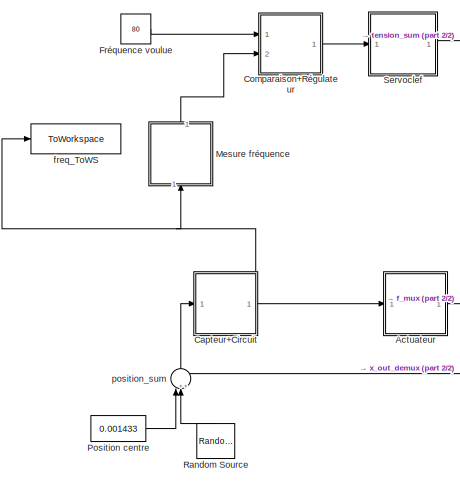
[diagram: root canvas - part 1/2, top left region]
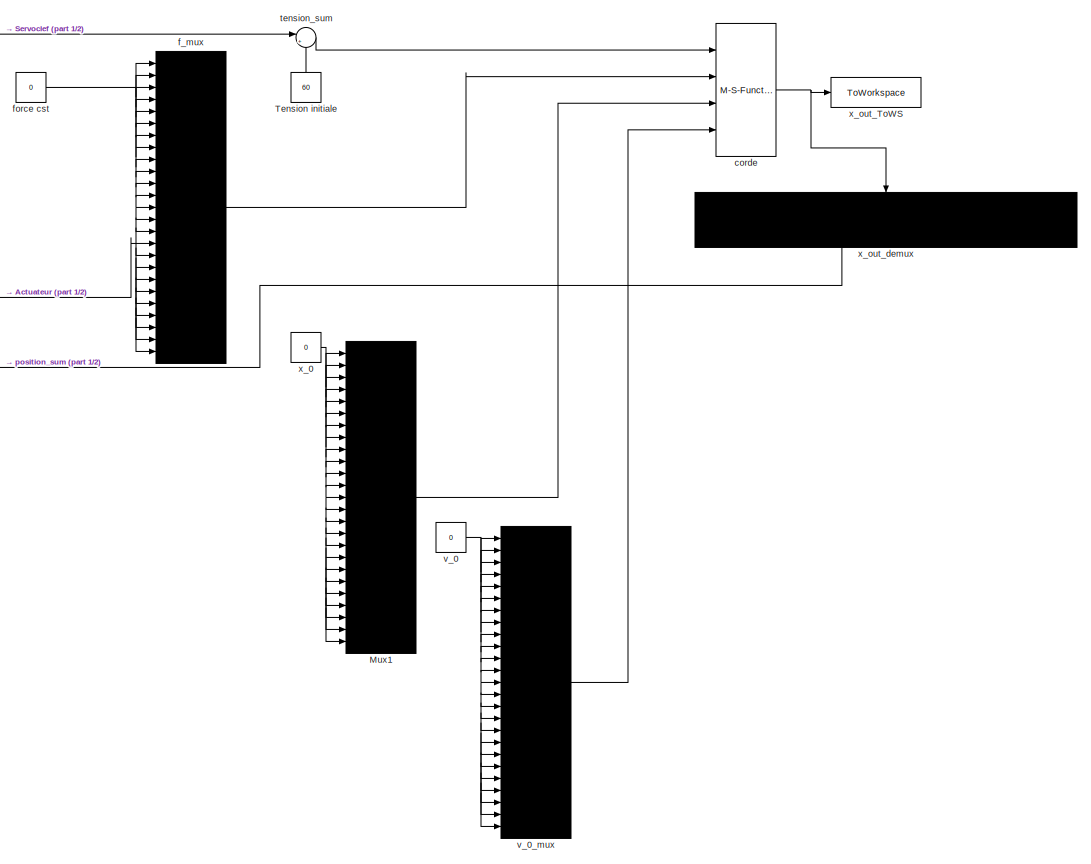
[diagram: root canvas - part 2/2, center side, full height]
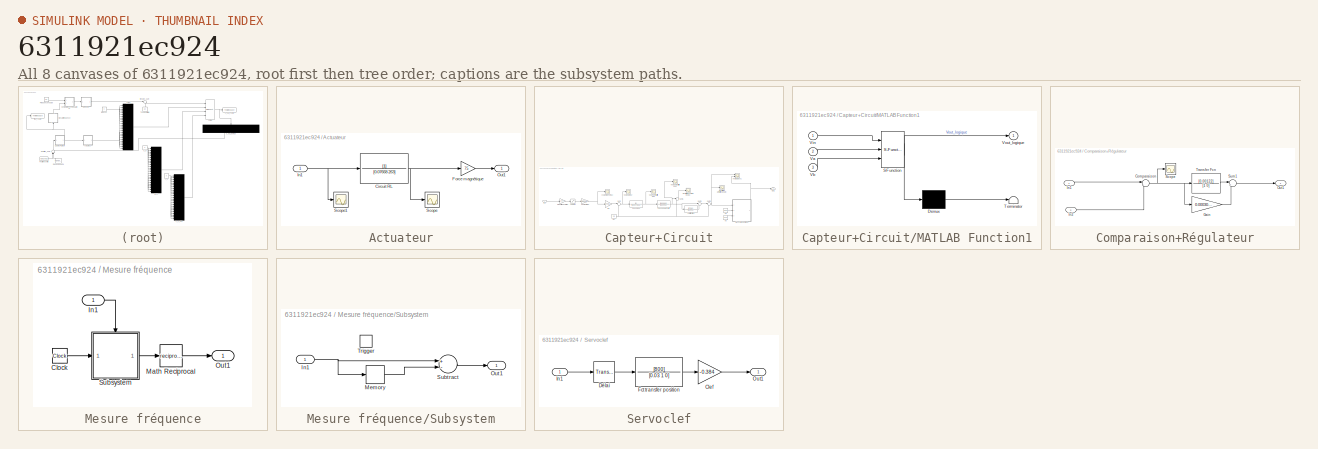
[diagram: thumbnail index - all 8 canvases of the model, root first then tree order]
MODEL slx_6311921ec924
KIND model
CONFIG AbsTol = auto
CONFIG EnableMultiTasking = off
CONFIG FixedStep = 0.001
CONFIG MaxStep = 0.001
CONFIG MinStep = 0.001
CONFIG RelTol = 1e-3
CONFIG SampleTimeConstraint = Unconstrained
CONFIG Solver = FixedStepAuto
CONFIG SolverName = FixedStepAuto
CONFIG StartTime = 0.0
CONFIG StopTime = 10
BLOCK [SubSystem] Actuateur
  Ports = [1, 1]
  RequestExecContextInheritance = off
BLOCK [TransferFcn] Actuateur/Circuit RL
  Denominator = [0.07668 263]
BLOCK [Gain] Actuateur/Force magnétique
  Gain = 75
  OutDataTypeStr = Inherit: Inherit via internal rule
  ParamDataTypeStr = Inherit: Inherit via internal rule
  SaturateOnIntegerOverflow = off
BLOCK [Inport] Actuateur/In1
  IconDisplay = Port number
BLOCK [Outport] Actuateur/Out1
  IconDisplay = Port number
BLOCK [Scope] Actuateur/Scope
  Floating = off
  NumInputPorts = 1
  Ports = [1]
  ScopeSpecificationString = Simulink.scopes.TimeScopeBlockCfg('CurrentConfiguration', extmgr.ConfigurationSet(extmgr.Configuration('Core','General UI',true),extmgr.Configuration('Core','Source UI',true),extmgr.Configuration('Sources','WiredSimulink',true),extmgr.Configuration('Visuals','Time Domain',true,'SerializedDisplays',{struct('MinYLimReal','-0.00492','MaxYLimReal','0.02151','YLabelReal','','MinYLimMag','0.00000','MaxY...<+1405ch>
BLOCK [Scope] Actuateur/Scope1
  Floating = off
  NumInputPorts = 1
  Ports = [1]
  ScopeSpecificationString = Simulink.scopes.TimeScopeBlockCfg('CurrentConfiguration', extmgr.ConfigurationSet(extmgr.Configuration('Core','General UI',true),extmgr.Configuration('Core','Source UI',true),extmgr.Configuration('Sources','WiredSimulink',true,'DataLoggingVariableName','ScopeData1'),extmgr.Configuration('Visuals','Time Domain',true,'SerializedDisplays',{struct('MinYLimReal','-6.25','MaxYLimReal','6.25','YLabelReal...<+1419ch>
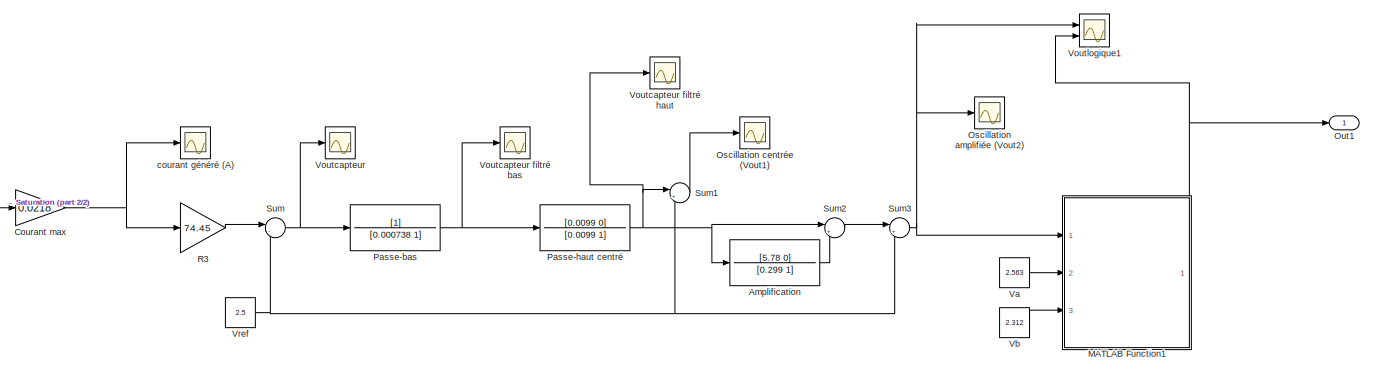
[diagram: Capteur+Circuit - part 1/2, most of the canvas]
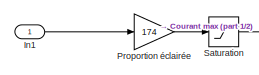
[diagram: Capteur+Circuit - part 2/2, middle left region]
BLOCK [SubSystem] Capteur+Circuit
  Ports = [1, 1]
  RequestExecContextInheritance = off
BLOCK [TransferFcn] Capteur+Circuit/Amplification 
  Denominator = [0.299 1]
  Numerator = [5.78 0]
BLOCK [Gain] Capteur+Circuit/Courant max
  Gain = 0.0218
  OutDataTypeStr = Inherit: Inherit via internal rule
  ParamDataTypeStr = Inherit: Inherit via internal rule
  SaturateOnIntegerOverflow = off
BLOCK [Inport] Capteur+Circuit/In1
  IconDisplay = Port number
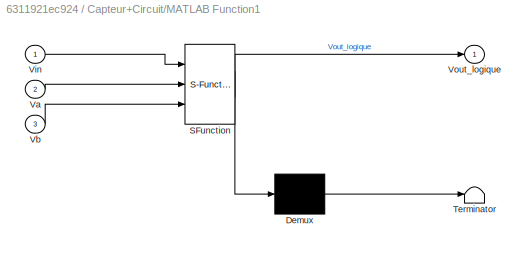
BLOCK [SubSystem] Capteur+Circuit/MATLAB Function1
  ErrorFcn = Stateflow.Translate.translate
  PermitHierarchicalResolution = ExplicitOnly
  Ports = [3, 1]
  RequestExecContextInheritance = off
  SFBlockType = MATLAB Function
  TreatAsAtomicUnit = on
BLOCK [Demux] Capteur+Circuit/MATLAB Function1/ Demux 
  Outputs = 1
  Ports = [1, 1]
BLOCK [S-Function] Capteur+Circuit/MATLAB Function1/ SFunction 
  EnableBusSupport = on
  FunctionName = sf_sfun
  PortCounts = [3 2]
  Ports = [3, 2]
  SFcnIsStateOwnerBlock = off
  SFunctionDeploymentMode = off
  Tag = Stateflow S-Function 1
BLOCK [Terminator] Capteur+Circuit/MATLAB Function1/ Terminator 
BLOCK [Inport] Capteur+Circuit/MATLAB Function1/Va
  IconDisplay = Port number
  Port = 2
BLOCK [Inport] Capteur+Circuit/MATLAB Function1/Vb
  IconDisplay = Port number
  Port = 3
BLOCK [Inport] Capteur+Circuit/MATLAB Function1/Vin
  IconDisplay = Port number
BLOCK [Outport] Capteur+Circuit/MATLAB Function1/Vout_logique
  IconDisplay = Port number
BLOCK [Scope] Capteur+Circuit/Oscillation amplifiée (Vout2) 
  Floating = off
  NumInputPorts = 1
  Ports = [1]
  ScopeSpecificationString = Simulink.scopes.TimeScopeBlockCfg('CurrentConfiguration', extmgr.ConfigurationSet(extmgr.Configuration('Core','General UI',true),extmgr.Configuration('Core','Source UI',true),extmgr.Configuration('Sources','WiredSimulink',true,'DataLoggingVariableName','ScopeData4'),extmgr.Configuration('Visuals','Time Domain',true,'SerializedDisplays',{struct('MinYLimReal','0.13794','MaxYLimReal','4.91227','YLabe...<+1487ch>
BLOCK [Scope] Capteur+Circuit/Oscillation centrée (Vout1)
  Floating = off
  NumInputPorts = 1
  Ports = [1]
  ScopeSpecificationString = Simulink.scopes.TimeScopeBlockCfg('CurrentConfiguration', extmgr.ConfigurationSet(extmgr.Configuration('Core','General UI',true),extmgr.Configuration('Core','Source UI',true),extmgr.Configuration('Sources','WiredSimulink',true,'DataLoggingVariableName','ScopeData3'),extmgr.Configuration('Visuals','Time Domain',true,'SerializedDisplays',{struct('MinYLimReal','1.75493','MaxYLimReal','4.03396','YLabe...<+1432ch>
BLOCK [Outport] Capteur+Circuit/Out1
  IconDisplay = Port number
BLOCK [TransferFcn] Capteur+Circuit/Passe-bas
  Denominator = [0.000738 1]
BLOCK [TransferFcn] Capteur+Circuit/Passe-haut centré 
  Denominator = [0.0099 1]
  Numerator = [0.0099 0]
BLOCK [Gain] Capteur+Circuit/Proportion éclairée
  Gain = 174
  OutDataTypeStr = Inherit: Inherit via internal rule
  ParamDataTypeStr = Inherit: Inherit via internal rule
  SaturateOnIntegerOverflow = off
BLOCK [Gain] Capteur+Circuit/R3
  Gain = 74.45
  OutDataTypeStr = Inherit: Inherit via internal rule
  ParamDataTypeStr = Inherit: Inherit via internal rule
  SaturateOnIntegerOverflow = off
BLOCK [Saturate] Capteur+Circuit/Saturation
  InputPortMap = u0
  LowerLimit = 0
  Ports = [1, 1]
  UpperLimit = 0.497
BLOCK [Sum] Capteur+Circuit/Sum
  IconShape = round
  InputSameDT = off
  Inputs = |-+
  OutDataTypeStr = Inherit: Inherit via internal rule
  Ports = [2, 1]
  SaturateOnIntegerOverflow = off
BLOCK [Sum] Capteur+Circuit/Sum1
  IconShape = round
  InputSameDT = off
  Inputs = |++
  OutDataTypeStr = Inherit: Inherit via internal rule
  Ports = [2, 1]
  SaturateOnIntegerOverflow = off
BLOCK [Sum] Capteur+Circuit/Sum2
  IconShape = round
  InputSameDT = off
  Inputs = |++
  OutDataTypeStr = Inherit: Inherit via internal rule
  Ports = [2, 1]
  SaturateOnIntegerOverflow = off
BLOCK [Sum] Capteur+Circuit/Sum3
  IconShape = round
  InputSameDT = off
  Inputs = |++
  OutDataTypeStr = Inherit: Inherit via internal rule
  Ports = [2, 1]
  SaturateOnIntegerOverflow = off
BLOCK [Constant] Capteur+Circuit/Va 
  Value = 2.563
BLOCK [Constant] Capteur+Circuit/Vb
  Value = 2.312
BLOCK [Scope] Capteur+Circuit/Voutcapteur 
  Floating = off
  NumInputPorts = 1
  Ports = [1]
  ScopeSpecificationString = Simulink.scopes.TimeScopeBlockCfg('CurrentConfiguration', extmgr.ConfigurationSet(extmgr.Configuration('Core','General UI',true),extmgr.Configuration('Core','Source UI',true),extmgr.Configuration('Sources','WiredSimulink',true,'DataLoggingVariableName','ScopeData2'),extmgr.Configuration('Visuals','Time Domain',true,'SerializedDisplays',{struct('MinYLimReal','2.3777','MaxYLimReal','2.38025','YLabel...<+1482ch>
BLOCK [Scope] Capteur+Circuit/Voutcapteur filtré bas
  Floating = off
  NumInputPorts = 1
  Ports = [1]
  ScopeSpecificationString = Simulink.scopes.TimeScopeBlockCfg('CurrentConfiguration', extmgr.ConfigurationSet(extmgr.Configuration('Core','General UI',true),extmgr.Configuration('Core','Source UI',true),extmgr.Configuration('Sources','WiredSimulink',true,'DataLoggingVariableName','ScopeData1'),extmgr.Configuration('Visuals','Time Domain',true,'SerializedDisplays',{struct('MinYLimReal','-0.30667','MaxYLimReal','2.76003','YLab...<+1469ch>
BLOCK [Scope] Capteur+Circuit/Voutcapteur filtré haut
  Floating = off
  NumInputPorts = 1
  Ports = [1]
  ScopeSpecificationString = Simulink.scopes.TimeScopeBlockCfg('CurrentConfiguration', extmgr.ConfigurationSet(extmgr.Configuration('Core','General UI',true),extmgr.Configuration('Core','Source UI',true),extmgr.Configuration('Sources','WiredSimulink',true,'DataLoggingVariableName','ScopeData2'),extmgr.Configuration('Visuals','Time Domain',true,'SerializedDisplays',{struct('MinYLimReal','-0.0776','MaxYLimReal','0.09565','YLabe...<+1445ch>
BLOCK [Scope] Capteur+Circuit/Voutlogique1
  Floating = off
  NumInputPorts = 2
  Ports = [2]
  ScopeSpecificationString = Simulink.scopes.TimeScopeBlockCfg('CurrentConfiguration', extmgr.ConfigurationSet(extmgr.Configuration('Core','General UI',true),extmgr.Configuration('Core','Source UI',true),extmgr.Configuration('Sources','WiredSimulink',true,'DataLoggingVariableName','ScopeData6'),extmgr.Configuration('Visuals','Time Domain',true,'SerializedDisplays',{struct('MinYLimReal','-87.77017','MaxYLimReal','15.3078','YLa...<+1823ch>
BLOCK [Constant] Capteur+Circuit/Vref 
  Value = 2.5
BLOCK [Scope] Capteur+Circuit/courant généré (A) 
  Floating = off
  NumInputPorts = 1
  Ports = [1]
  ScopeSpecificationString = Simulink.scopes.TimeScopeBlockCfg('CurrentConfiguration', extmgr.ConfigurationSet(extmgr.Configuration('Core','General UI',true),extmgr.Configuration('Core','Source UI',true),extmgr.Configuration('Sources','WiredSimulink',true),extmgr.Configuration('Visuals','Time Domain',true,'SerializedDisplays',{struct('MinYLimReal','-0.00264','MaxYLimReal','0.0238','YLabelReal','','MinYLimMag','0.00000','MaxYL...<+1426ch>
BLOCK [SubSystem] Comparaison+Régulateur
  Ports = [2, 1]
  RequestExecContextInheritance = off
BLOCK [Sum] Comparaison+Régulateur/Comparaison
  IconShape = round
  InputSameDT = off
  Inputs = |-+
  OutDataTypeStr = Inherit: Inherit via internal rule
  Ports = [2, 1]
  SaturateOnIntegerOverflow = off
BLOCK [Gain] Comparaison+Régulateur/Gain
  Gain = 0.0003051
  OutDataTypeStr = Inherit: Inherit via internal rule
  ParamDataTypeStr = Inherit: Inherit via internal rule
  SaturateOnIntegerOverflow = off
BLOCK [Inport] Comparaison+Régulateur/In1
  IconDisplay = Port number
BLOCK [Inport] Comparaison+Régulateur/In2
  IconDisplay = Port number
  Port = 2
BLOCK [Outport] Comparaison+Régulateur/Out1
  IconDisplay = Port number
BLOCK [Scope] Comparaison+Régulateur/Scope
  Floating = off
  NumInputPorts = 1
  Ports = [1]
  ScopeSpecificationString = Simulink.scopes.TimeScopeBlockCfg('CurrentConfiguration', extmgr.ConfigurationSet(extmgr.Configuration('Core','General UI',true),extmgr.Configuration('Core','Source UI',true),extmgr.Configuration('Sources','WiredSimulink',true,'DataLoggingVariableName','ScopeData6'),extmgr.Configuration('Visuals','Time Domain',true,'SerializedDisplays',{struct('MinYLimReal','-223.29815','MaxYLimReal','-190.31662',...<+1439ch>
BLOCK [Sum] Comparaison+Régulateur/Sum1
  IconShape = round
  InputSameDT = off
  Inputs = |++
  OutDataTypeStr = Inherit: Inherit via internal rule
  Ports = [2, 1]
  SaturateOnIntegerOverflow = off
BLOCK [TransferFcn] Comparaison+Régulateur/Transfer Fcn
  Denominator = [1 0]
  Numerator = [0.00122]
BLOCK [Constant] Fréquence voulue
  Value = 80
BLOCK [SubSystem] Mesure fréquence
  Ports = [1, 1]
  RequestExecContextInheritance = off
BLOCK [Clock] Mesure fréquence/Clock
BLOCK [Inport] Mesure fréquence/In1
  IconDisplay = Port number
BLOCK [Math] Mesure fréquence/Math Reciprocal
  Operator = reciprocal
  Ports = [1, 1]
BLOCK [Outport] Mesure fréquence/Out1
  IconDisplay = Port number
BLOCK [SubSystem] Mesure fréquence/Subsystem
  Ports = [1, 1, 0, 1]
  RequestExecContextInheritance = off
BLOCK [Inport] Mesure fréquence/Subsystem/In1
  IconDisplay = Port number
BLOCK [Memory] Mesure fréquence/Subsystem/Memory
  InheritSampleTime = on
BLOCK [Outport] Mesure fréquence/Subsystem/Out1
  IconDisplay = Port number
BLOCK [Sum] Mesure fréquence/Subsystem/Subtract
  InputSameDT = off
  Inputs = +-
  OutDataTypeStr = Inherit: Inherit via internal rule
  Ports = [2, 1]
  SaturateOnIntegerOverflow = off
BLOCK [TriggerPort] Mesure fréquence/Subsystem/Trigger
  PortDimensions = 1
  Ports = []
  StatesWhenEnabling = held
  VariantControl = Variant
BLOCK [Mux] Mux1
  DisplayOption = bar
  Inputs = 25
  Ports = [25, 1]
BLOCK [Constant] Position centre
  Value = 0.001433
BLOCK [Reference] Random Source  REF=dspsrcs4/Random
Source
  Commented = on
  Ports = [0, 1]
  SourceBlock = dspsrcs4/Random\nSource
  SourceProductBaseCode = DS
  SourceProductName = DSP System Toolbox
  SourceType = Random Source
  UserDataPersistent = on
BLOCK [SubSystem] Servoclef
  Ports = [1, 1]
  RequestExecContextInheritance = off
BLOCK [Gain] Servoclef/Clef
  Gain = -0.384
  OutDataTypeStr = Inherit: Inherit via internal rule
  ParamDataTypeStr = Inherit: Inherit via internal rule
  SaturateOnIntegerOverflow = off
BLOCK [TransportDelay] Servoclef/Délai
  DelayTime = 0.01
  Ports = [1, 1]
BLOCK [TransferFcn] Servoclef/Fct transfer position
  Denominator = [0.03 1 0]
  Numerator = [800]
BLOCK [Inport] Servoclef/In1
  IconDisplay = Port number
BLOCK [Outport] Servoclef/Out1
  IconDisplay = Port number
BLOCK [Constant] Tension initiale
  Value = 60
BLOCK [M-S-Function] corde
  FunctionName = CordeBySegment_SetupSimulink
  Parameters = 9.600000e-04, 3.000000e-01, 0, 25, 1.000000e-03
  Ports = [4, 1]
BLOCK [Mux] f_mux
  DisplayOption = bar
  Inputs = 25
  Ports = [25, 1]
BLOCK [Constant] force cst
  Value = 0
BLOCK [ToWorkspace] freq_ToWS
  Commented = on
  FixptAsFi = on
  MaxDataPoints = inf
  Ports = [1]
  SampleTime = -1
  SaveFormat = Timeseries
  VariableName = frequence_temps
BLOCK [Sum] position_sum
  IconShape = round
  InputSameDT = off
  Inputs = |+++
  OutDataTypeStr = Inherit: Inherit via internal rule
  Ports = [3, 1]
  SaturateOnIntegerOverflow = off
BLOCK [Sum] tension_sum
  IconShape = round
  InputSameDT = off
  Inputs = |++
  OutDataTypeStr = Inherit: Inherit via internal rule
  Ports = [2, 1]
  SaturateOnIntegerOverflow = off
BLOCK [Constant] v_0
  Value = 0
BLOCK [Mux] v_0_mux
  DisplayOption = bar
  Inputs = 25
  Ports = [25, 1]
BLOCK [Constant] x_0
  Value = 0
BLOCK [ToWorkspace] x_out_ToWS
  FixptAsFi = on
  MaxDataPoints = inf
  Ports = [1]
  SampleTime = -1
  SaveFormat = Timeseries
  VariableName = corde_mesure
BLOCK [Demux] x_out_demux
  DisplayOption = bar
  Outputs = 25
  Ports = [1, 25]
NET Actuateur/Circuit RL:1 -> Actuateur/Force magnétique:1, Actuateur/Scope:1
LINE Actuateur/Force magnétique:1 -> Actuateur/Out1:1
NET Actuateur/In1:1 -> Actuateur/Circuit RL:1, Actuateur/Scope1:1
LINE Actuateur:1 -> f_mux:16
LINE Capteur+Circuit/Amplification :1 -> Capteur+Circuit/Sum2:2
NET Capteur+Circuit/Courant max:1 -> Capteur+Circuit/R3:1, Capteur+Circuit/courant généré (A) :1
LINE Capteur+Circuit/In1:1 -> Capteur+Circuit/Proportion éclairée:1
NET Capteur+Circuit/MATLAB Function1:1 -> Capteur+Circuit/Out1:1, Capteur+Circuit/Voutlogique1:2
NET Capteur+Circuit/Passe-bas:1 -> Capteur+Circuit/Passe-haut centré :1, Capteur+Circuit/Voutcapteur filtré bas:1
NET Capteur+Circuit/Passe-haut centré :1 -> Capteur+Circuit/Amplification :1, Capteur+Circuit/Sum1:1, Capteur+Circuit/Sum2:1, Capteur+Circuit/Voutcapteur filtré haut:1
LINE Capteur+Circuit/Proportion éclairée:1 -> Capteur+Circuit/Saturation:1
LINE Capteur+Circuit/R3:1 -> Capteur+Circuit/Sum:1
LINE Capteur+Circuit/Saturation:1 -> Capteur+Circuit/Courant max:1
LINE Capteur+Circuit/Sum1:1 -> Capteur+Circuit/Oscillation centrée (Vout1):1
LINE Capteur+Circuit/Sum2:1 -> Capteur+Circuit/Sum3:1
NET Capteur+Circuit/Sum3:1 -> Capteur+Circuit/MATLAB Function1:1, Capteur+Circuit/Oscillation amplifiée (Vout2) :1, Capteur+Circuit/Voutlogique1:1
NET Capteur+Circuit/Sum:1 -> Capteur+Circuit/Passe-bas:1, Capteur+Circuit/Voutcapteur :1
LINE Capteur+Circuit/Va :1 -> Capteur+Circuit/MATLAB Function1:2
LINE Capteur+Circuit/Vb:1 -> Capteur+Circuit/MATLAB Function1:3
NET Capteur+Circuit/Vref :1 -> Capteur+Circuit/Sum1:2, Capteur+Circuit/Sum3:2, Capteur+Circuit/Sum:2
NET Capteur+Circuit:1 -> Actuateur:1, Mesure fréquence:1, freq_ToWS:1
NET Comparaison+Régulateur/Comparaison:1 -> Comparaison+Régulateur/Gain:1, Comparaison+Régulateur/Scope:1, Comparaison+Régulateur/Transfer Fcn:1
LINE Comparaison+Régulateur/Gain:1 -> Comparaison+Régulateur/Sum1:2
LINE Comparaison+Régulateur/In1:1 -> Comparaison+Régulateur/Comparaison:1
LINE Comparaison+Régulateur/In2:1 -> Comparaison+Régulateur/Comparaison:2
LINE Comparaison+Régulateur/Sum1:1 -> Comparaison+Régulateur/Out1:1
LINE Comparaison+Régulateur/Transfer Fcn:1 -> Comparaison+Régulateur/Sum1:1
LINE Comparaison+Régulateur:1 -> Servoclef:1
LINE Fréquence voulue:1 -> Comparaison+Régulateur:1
LINE Mesure fréquence/Clock:1 -> Mesure fréquence/Subsystem:1
LINE Mesure fréquence/In1:1 -> Mesure fréquence/Subsystem:trigger
LINE Mesure fréquence/Math Reciprocal:1 -> Mesure fréquence/Out1:1
NET Mesure fréquence/Subsystem/In1:1 -> Mesure fréquence/Subsystem/Memory:1, Mesure fréquence/Subsystem/Subtract:1
LINE Mesure fréquence/Subsystem/Memory:1 -> Mesure fréquence/Subsystem/Subtract:2
LINE Mesure fréquence/Subsystem/Subtract:1 -> Mesure fréquence/Subsystem/Out1:1
LINE Mesure fréquence/Subsystem:1 -> Mesure fréquence/Math Reciprocal:1
LINE Mesure fréquence:1 -> Comparaison+Régulateur:2
LINE Mux1:1 -> corde:3
LINE Position centre:1 -> position_sum:1
LINE Random Source:1 -> position_sum:2
LINE Servoclef/Clef:1 -> Servoclef/Out1:1
LINE Servoclef/Délai:1 -> Servoclef/Fct transfer position:1
LINE Servoclef/Fct transfer position:1 -> Servoclef/Clef:1
LINE Servoclef/In1:1 -> Servoclef/Délai:1
LINE Servoclef:1 -> tension_sum:1
LINE Tension initiale:1 -> tension_sum:2
NET corde:1 -> x_out_ToWS:1, x_out_demux:1
LINE f_mux:1 -> corde:2
NET force cst:1 -> f_mux:1, f_mux:10, f_mux:11, f_mux:12, f_mux:13, f_mux:14, f_mux:15, f_mux:17, f_mux:18, f_mux:19, f_mux:2, f_mux:20, f_mux:21, f_mux:22, f_mux:23, f_mux:24, f_mux:25, f_mux:3, f_mux:4, f_mux:5, f_mux:6, f_mux:7, f_mux:8, f_mux:9
LINE position_sum:1 -> Capteur+Circuit:1
LINE tension_sum:1 -> corde:1
NET v_0:1 -> v_0_mux:1, v_0_mux:10, v_0_mux:11, v_0_mux:12, v_0_mux:13, v_0_mux:14, v_0_mux:15, v_0_mux:16, v_0_mux:17, v_0_mux:18, v_0_mux:19, v_0_mux:2, v_0_mux:20, v_0_mux:21, v_0_mux:22, v_0_mux:23, v_0_mux:24, v_0_mux:25, v_0_mux:3, v_0_mux:4, v_0_mux:5, v_0_mux:6, v_0_mux:7, v_0_mux:8, v_0_mux:9
LINE v_0_mux:1 -> corde:4
NET x_0:1 -> Mux1:1, Mux1:10, Mux1:11, Mux1:12, Mux1:13, Mux1:14, Mux1:15, Mux1:16, Mux1:17, Mux1:18, Mux1:19, Mux1:2, Mux1:20, Mux1:21, Mux1:22, Mux1:23, Mux1:24, Mux1:25, Mux1:3, Mux1:4, Mux1:5, Mux1:6, Mux1:7, Mux1:8, Mux1:9
LINE x_out_demux:10 -> position_sum:3
note: NET lines group one-source signal fan-out (src -> all destinations, sorted); 1:1 wires keep LINE
CHART Capteur+Circuit/MATLAB Function1 states=1 transitions=1
  STATE_LABEL 'eML_blk_kernel()'
  STATE_LABEL 'SCRIPT:\nfunction Vout_logique = fcn(Vin, Va, Vb)\n\nVout_logique = 0;\nif Vin > Va && Vout_logique == 5\n    Vout_logique = 0;\nend\nif Vin < Vb && Vout_logique == 0\n    Vout_logique = 5;\nend\nend\n \n'
